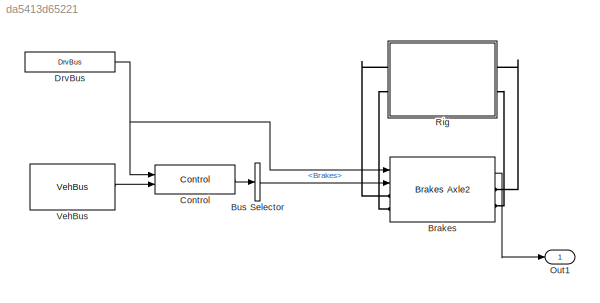
MODEL slx_da5413d65221
KIND model
CONFIG AbsTol = auto
CONFIG EnableMultiTasking = off
CONFIG FixedStep = auto
CONFIG MaxStep = auto
CONFIG MinStep = auto
CONFIG RelTol = 1e-3
CONFIG SampleTimeConstraint = Unconstrained
CONFIG SolverName = VariableStepAuto
CONFIG StartTime = 0.0
CONFIG StopTime = 10.0
BLOCK [Reference] Brakes  REF=Brakes_Axle2/Brakes Axle2
  AttributesFormatString = %<ActiveVariant>
  Ports = [2, 1, 0, 0, 0, 2, 2]
  SourceBlock = Brakes_Axle2/Brakes Axle2
  SourceType = Variants for Brake System
  Tag = PublishSubsystem
BLOCK [BusSelector] Bus Selector
  OutputSignals = Brakes
  Ports = [1, 1]
BLOCK [Reference] Control  REF=sm_car_lib/Control/Control  (lib defined in slx_05426f0848b6, slx_5dc2867fb1c9)
  AttributesFormatString = %<popup_brake_control>
  Ports = [2, 1]
  SourceBlock = sm_car_lib/Control/Control
BLOCK [Reference] DrvBus  REF=sm_car_lib/Inputs/DrvBus  (lib defined in slx_05426f0848b6, slx_5dc2867fb1c9)
  Ports = [0, 1]
  SourceBlock = sm_car_lib/Inputs/DrvBus
  SourceType = SubSystem
BLOCK [Outport] Out1
  AttributesFormatString = %<OutDataTypeStr>
  OutDataTypeStr = Bus: VehicleBrakesBusDef
  VectorParamsAs1DForOutWhenUnconnected = off
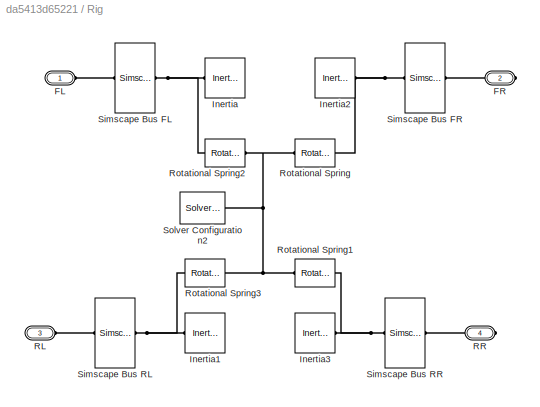
BLOCK [SubSystem] Rig
  Ports = [0, 0, 0, 0, 0, 2, 2]
  RequestExecContextInheritance = off
BLOCK [PMIOPort] Rig/FL
  Side = Left
BLOCK [PMIOPort] Rig/FR
  Port = 2
  Side = Right
BLOCK [Reference] Rig/Inertia  REF=fl_lib/Mechanical/Rotational Elements/Inertia
  Ports = [0, 0, 0, 0, 0, 1]
  SourceBlock = fl_lib/Mechanical/Rotational Elements/Inertia
  SourceProductBaseCode = PW,SS,VE
  SourceType = Inertia
BLOCK [Reference] Rig/Inertia1  REF=fl_lib/Mechanical/Rotational Elements/Inertia
  Ports = [0, 0, 0, 0, 0, 1]
  SourceBlock = fl_lib/Mechanical/Rotational Elements/Inertia
  SourceProductBaseCode = PW,SS,VE
  SourceType = Inertia
BLOCK [Reference] Rig/Inertia2  REF=fl_lib/Mechanical/Rotational Elements/Inertia
  Ports = [0, 0, 0, 0, 0, 1]
  SourceBlock = fl_lib/Mechanical/Rotational Elements/Inertia
  SourceProductBaseCode = PW,SS,VE
  SourceType = Inertia
BLOCK [Reference] Rig/Inertia3  REF=fl_lib/Mechanical/Rotational Elements/Inertia
  Ports = [0, 0, 0, 0, 0, 1]
  SourceBlock = fl_lib/Mechanical/Rotational Elements/Inertia
  SourceProductBaseCode = PW,SS,VE
  SourceType = Inertia
BLOCK [PMIOPort] Rig/RL
  Port = 3
  Side = Left
BLOCK [PMIOPort] Rig/RR
  Port = 4
  Side = Right
BLOCK [Reference] Rig/Rotational Spring  REF=fl_lib/Mechanical/Rotational Elements/Rotational Spring
  Ports = [0, 0, 0, 0, 0, 1, 1]
  SourceBlock = fl_lib/Mechanical/Rotational Elements/Rotational Spring
  SourceProductBaseCode = PW,SS,VE
  SourceType = Rotational Spring
BLOCK [Reference] Rig/Rotational Spring1  REF=fl_lib/Mechanical/Rotational Elements/Rotational Spring
  Ports = [0, 0, 0, 0, 0, 1, 1]
  SourceBlock = fl_lib/Mechanical/Rotational Elements/Rotational Spring
  SourceProductBaseCode = PW,SS,VE
  SourceType = Rotational Spring
BLOCK [Reference] Rig/Rotational Spring2  REF=fl_lib/Mechanical/Rotational Elements/Rotational Spring
  Ports = [0, 0, 0, 0, 0, 1, 1]
  SourceBlock = fl_lib/Mechanical/Rotational Elements/Rotational Spring
  SourceProductBaseCode = PW,SS,VE
  SourceType = Rotational Spring
BLOCK [Reference] Rig/Rotational Spring3  REF=fl_lib/Mechanical/Rotational Elements/Rotational Spring
  Ports = [0, 0, 0, 0, 0, 1, 1]
  SourceBlock = fl_lib/Mechanical/Rotational Elements/Rotational Spring
  SourceProductBaseCode = PW,SS,VE
  SourceType = Rotational Spring
BLOCK [SimscapeBus] Rig/Simscape Bus FL
  HierarchyStrings = Axle1D
  Ports = [0, 0, 0, 0, 0, 1, 1]
BLOCK [SimscapeBus] Rig/Simscape Bus FR
  HierarchyStrings = Axle1D
  Ports = [0, 0, 0, 0, 0, 1, 1]
BLOCK [SimscapeBus] Rig/Simscape Bus RL
  HierarchyStrings = Axle1D
  Ports = [0, 0, 0, 0, 0, 1, 1]
BLOCK [SimscapeBus] Rig/Simscape Bus RR
  HierarchyStrings = Axle1D
  Ports = [0, 0, 0, 0, 0, 1, 1]
BLOCK [Reference] Rig/Solver Configuration2  REF=nesl_utility/Solver
Configuration
  Ports = [0, 0, 0, 0, 0, 0, 1]
  SourceBlock = nesl_utility/Solver\nConfiguration
  SourceProductBaseCode = SS,PW,VE
  SourceType = Solver\nConfiguration
BLOCK [Reference] VehBus  REF=sm_car_lib/Outputs/VehBus  (lib defined in slx_05426f0848b6, slx_5dc2867fb1c9)
  Ports = [0, 1]
  SourceBlock = sm_car_lib/Outputs/VehBus
  SourceType = SubSystem
LINE Brakes:1 -> Out1:1
LINE Bus Selector:1 -> Brakes:2
LINE Control:1 -> Bus Selector:1
NET DrvBus:1 -> Brakes:1, Control:1
LINE VehBus:1 -> Control:2
PLINE Brakes:LConn1 -- Rig:LConn1
PLINE Brakes:LConn2 -- Rig:LConn2
PLINE Brakes:RConn1 -- Rig:RConn1
PLINE Brakes:RConn2 -- Rig:RConn2
PLINE Rig/FL:RConn1 -- Rig/Simscape Bus FL:RConn1
PLINE Rig/FR:RConn1 -- Rig/Simscape Bus FR:RConn1
PNET net1: Rig/Inertia1:LConn1 -- Rig/Rotational Spring3:RConn1 -- Rig/Simscape Bus RL:LConn1
PNET net2: Rig/Inertia2:LConn1 -- Rig/Rotational Spring:RConn1 -- Rig/Simscape Bus FR:LConn1
PNET net3: Rig/Inertia3:LConn1 -- Rig/Rotational Spring1:RConn1 -- Rig/Simscape Bus RR:LConn1
PNET net4: Rig/Inertia:LConn1 -- Rig/Rotational Spring2:RConn1 -- Rig/Simscape Bus FL:LConn1
PLINE Rig/RL:RConn1 -- Rig/Simscape Bus RL:RConn1
PLINE Rig/RR:RConn1 -- Rig/Simscape Bus RR:RConn1
PNET net5: Rig/Rotational Spring1:LConn1 -- Rig/Rotational Spring2:LConn1 -- Rig/Rotational Spring3:LConn1 -- Rig/Rotational Spring:LConn1 -- Rig/Solver Configuration2:RConn1
note: NET lines group one-source signal fan-out (src -> all destinations, sorted); 1:1 wires keep LINE; PNET lines group multi-terminal physical nets as a canonical sorted terminal list (undirected conserving connections); 2-terminal nets keep the pairwise PLINE form
